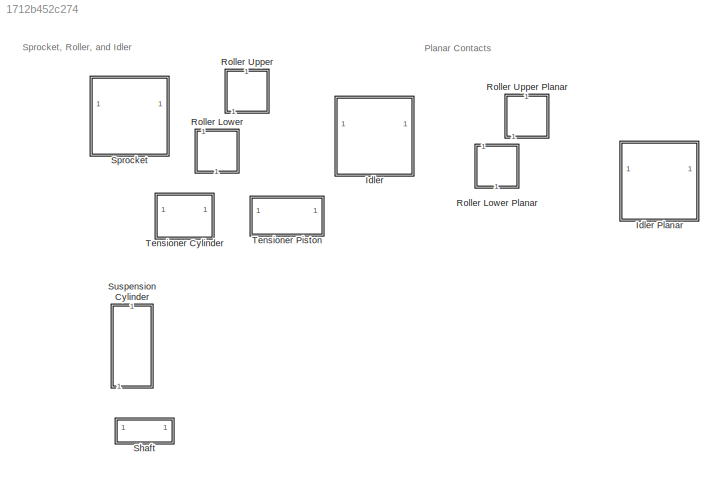
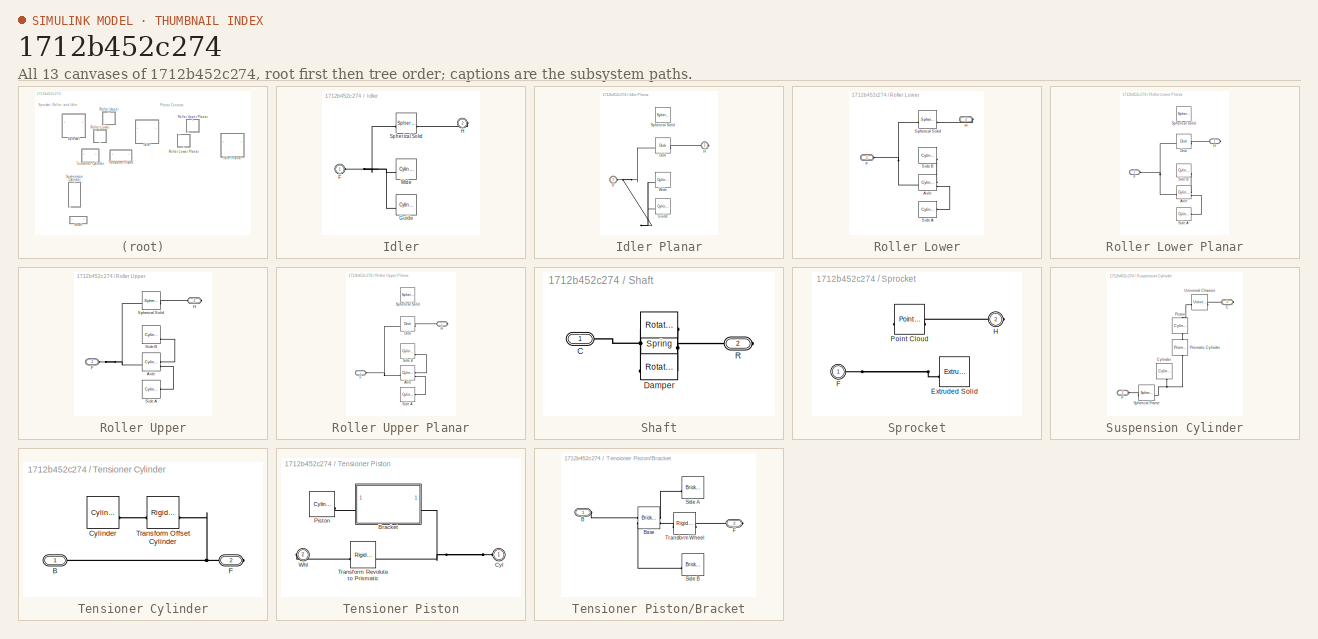
[diagram: thumbnail index - all 13 canvases of the model, root first then tree order]
MODEL slx_1712b452c274
KIND library
CONFIG SolverName = VariableStepAuto
BLOCK [SubSystem] Idler
BLOCK [SubSystem] Idler Planar
BLOCK [Reference] Idler Planar/Disk  REF=sm_lib/Curves and Surfaces/Disk
  SourceBlock = sm_lib/Curves and Surfaces/Disk
  SourceType = Disk
BLOCK [PMIOPort] Idler Planar/F
  Side = Left
BLOCK [Reference] Idler Planar/Guide  REF=sm_lib/Body Elements/Cylindrical Solid
  SourceBlock = sm_lib/Body Elements/Cylindrical Solid
  SourceType = Cylindrical Solid
BLOCK [PMIOPort] Idler Planar/H
  Port = 2
  Side = Right
BLOCK [Reference] Idler Planar/Spherical Solid  REF=sm_lib/Body Elements/Spherical Solid
  SourceBlock = sm_lib/Body Elements/Spherical Solid
  SourceType = Spherical Solid
BLOCK [Reference] Idler Planar/Wide  REF=sm_lib/Body Elements/Cylindrical Solid
  SourceBlock = sm_lib/Body Elements/Cylindrical Solid
  SourceType = Cylindrical Solid
BLOCK [PMIOPort] Idler/F
  Side = Left
BLOCK [Reference] Idler/Guide  REF=sm_lib/Body Elements/Cylindrical Solid
  SourceBlock = sm_lib/Body Elements/Cylindrical Solid
  SourceType = Cylindrical Solid
BLOCK [PMIOPort] Idler/H
  Port = 2
  Side = Right
BLOCK [Reference] Idler/Spherical Solid  REF=sm_lib/Body Elements/Spherical Solid
  SourceBlock = sm_lib/Body Elements/Spherical Solid
  SourceType = Spherical Solid
BLOCK [Reference] Idler/Wide  REF=sm_lib/Body Elements/Cylindrical Solid
  SourceBlock = sm_lib/Body Elements/Cylindrical Solid
  SourceType = Cylindrical Solid
BLOCK [SubSystem] Roller Lower
  NameLocation = right
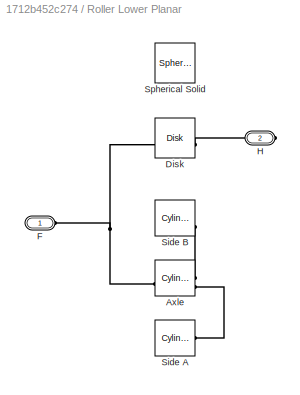
BLOCK [SubSystem] Roller Lower Planar
  NameLocation = right
BLOCK [Reference] Roller Lower Planar/Axle  REF=sm_lib/Body Elements/Cylindrical Solid
  SourceBlock = sm_lib/Body Elements/Cylindrical Solid
  SourceType = Cylindrical Solid
BLOCK [Reference] Roller Lower Planar/Disk  REF=sm_lib/Curves and Surfaces/Disk
  SourceBlock = sm_lib/Curves and Surfaces/Disk
  SourceType = Disk
BLOCK [PMIOPort] Roller Lower Planar/F
  Side = Left
BLOCK [PMIOPort] Roller Lower Planar/H
  Port = 2
  Side = Right
BLOCK [Reference] Roller Lower Planar/Side A  REF=sm_lib/Body Elements/Cylindrical Solid
  SourceBlock = sm_lib/Body Elements/Cylindrical Solid
  SourceType = Cylindrical Solid
BLOCK [Reference] Roller Lower Planar/Side B  REF=sm_lib/Body Elements/Cylindrical Solid
  SourceBlock = sm_lib/Body Elements/Cylindrical Solid
  SourceType = Cylindrical Solid
BLOCK [Reference] Roller Lower Planar/Spherical Solid  REF=sm_lib/Body Elements/Spherical Solid
  SourceBlock = sm_lib/Body Elements/Spherical Solid
  SourceType = Spherical Solid
BLOCK [Reference] Roller Lower/Axle  REF=sm_lib/Body Elements/Cylindrical Solid
  SourceBlock = sm_lib/Body Elements/Cylindrical Solid
  SourceType = Cylindrical Solid
BLOCK [PMIOPort] Roller Lower/F
  Side = Left
BLOCK [PMIOPort] Roller Lower/H
  Port = 2
  Side = Right
BLOCK [Reference] Roller Lower/Side A  REF=sm_lib/Body Elements/Cylindrical Solid
  SourceBlock = sm_lib/Body Elements/Cylindrical Solid
  SourceType = Cylindrical Solid
BLOCK [Reference] Roller Lower/Side B  REF=sm_lib/Body Elements/Cylindrical Solid
  SourceBlock = sm_lib/Body Elements/Cylindrical Solid
  SourceType = Cylindrical Solid
BLOCK [Reference] Roller Lower/Spherical Solid  REF=sm_lib/Body Elements/Spherical Solid
  SourceBlock = sm_lib/Body Elements/Spherical Solid
  SourceType = Spherical Solid
BLOCK [SubSystem] Roller Upper
  NameLocation = right
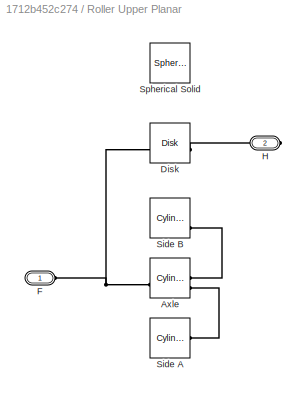
BLOCK [SubSystem] Roller Upper Planar
  NameLocation = right
BLOCK [Reference] Roller Upper Planar/Axle  REF=sm_lib/Body Elements/Cylindrical Solid
  SourceBlock = sm_lib/Body Elements/Cylindrical Solid
  SourceType = Cylindrical Solid
BLOCK [Reference] Roller Upper Planar/Disk  REF=sm_lib/Curves and Surfaces/Disk
  SourceBlock = sm_lib/Curves and Surfaces/Disk
  SourceType = Disk
BLOCK [PMIOPort] Roller Upper Planar/F
  Side = Left
BLOCK [PMIOPort] Roller Upper Planar/H
  Port = 2
  Side = Right
BLOCK [Reference] Roller Upper Planar/Side A  REF=sm_lib/Body Elements/Cylindrical Solid
  SourceBlock = sm_lib/Body Elements/Cylindrical Solid
  SourceType = Cylindrical Solid
BLOCK [Reference] Roller Upper Planar/Side B  REF=sm_lib/Body Elements/Cylindrical Solid
  SourceBlock = sm_lib/Body Elements/Cylindrical Solid
  SourceType = Cylindrical Solid
BLOCK [Reference] Roller Upper Planar/Spherical Solid  REF=sm_lib/Body Elements/Spherical Solid
  SourceBlock = sm_lib/Body Elements/Spherical Solid
  SourceType = Spherical Solid
BLOCK [Reference] Roller Upper/Axle  REF=sm_lib/Body Elements/Cylindrical Solid
  SourceBlock = sm_lib/Body Elements/Cylindrical Solid
  SourceType = Cylindrical Solid
BLOCK [PMIOPort] Roller Upper/F
  Side = Left
BLOCK [PMIOPort] Roller Upper/H
  Port = 2
  Side = Right
BLOCK [Reference] Roller Upper/Side A  REF=sm_lib/Body Elements/Cylindrical Solid
  SourceBlock = sm_lib/Body Elements/Cylindrical Solid
  SourceType = Cylindrical Solid
BLOCK [Reference] Roller Upper/Side B  REF=sm_lib/Body Elements/Cylindrical Solid
  SourceBlock = sm_lib/Body Elements/Cylindrical Solid
  SourceType = Cylindrical Solid
BLOCK [Reference] Roller Upper/Spherical Solid  REF=sm_lib/Body Elements/Spherical Solid
  SourceBlock = sm_lib/Body Elements/Spherical Solid
  SourceType = Spherical Solid
BLOCK [SubSystem] Shaft
BLOCK [PMIOPort] Shaft/C
  Side = Left
BLOCK [Reference] Shaft/Damper  REF=fl_lib/Mechanical/Rotational Elements/Rotational Damper
  SourceBlock = fl_lib/Mechanical/Rotational Elements/Rotational Damper
  SourceType = Rotational Damper
BLOCK [PMIOPort] Shaft/R
  Port = 2
  Side = Right
BLOCK [Reference] Shaft/Spring  REF=fl_lib/Mechanical/Rotational Elements/Rotational Spring
  NameLocation = top
  SourceBlock = fl_lib/Mechanical/Rotational Elements/Rotational Spring
  SourceType = Rotational Spring
BLOCK [SubSystem] Sprocket
BLOCK [Reference] Sprocket/Extruded Solid  REF=sm_lib/Body Elements/Extruded Solid
  SourceBlock = sm_lib/Body Elements/Extruded Solid
  SourceType = Extruded Solid
BLOCK [PMIOPort] Sprocket/F
  Side = Left
BLOCK [PMIOPort] Sprocket/H
  Port = 2
  Side = Right
BLOCK [Reference] Sprocket/Point Cloud  REF=sm_lib/Curves and Surfaces/Point Cloud
  SourceBlock = sm_lib/Curves and Surfaces/Point Cloud
  SourceType = Point Cloud
BLOCK [SubSystem] Suspension Cylinder
  NameLocation = right
BLOCK [PMIOPort] Suspension Cylinder/C
  Side = Right
BLOCK [Reference] Suspension Cylinder/Cylinder  REF=sm_lib/Body Elements/Cylindrical Solid
  NameLocation = left
  SourceBlock = sm_lib/Body Elements/Cylindrical Solid
  SourceType = Cylindrical Solid
BLOCK [PMIOPort] Suspension Cylinder/F
  Port = 2
  Side = Left
BLOCK [Reference] Suspension Cylinder/Piston  REF=sm_lib/Body Elements/Cylindrical Solid
  NameLocation = left
  SourceBlock = sm_lib/Body Elements/Cylindrical Solid
  SourceType = Cylindrical Solid
BLOCK [Reference] Suspension Cylinder/Prismatic Cylinder  REF=sm_lib/Joints/Prismatic
Joint
  NameLocation = left
  SourceBlock = sm_lib/Joints/Prismatic\nJoint
  SourceType = Prismatic\nJoint
BLOCK [Reference] Suspension Cylinder/Spherical Frame  REF=sm_lib/Joints/Spherical
Joint
  SourceBlock = sm_lib/Joints/Spherical\nJoint
  SourceType = Spherical\nJoint
BLOCK [Reference] Suspension Cylinder/Universal Chassis  REF=sm_lib/Joints/Universal
Joint
  SourceBlock = sm_lib/Joints/Universal\nJoint
  SourceType = Universal\nJoint
BLOCK [SubSystem] Tensioner Cylinder
BLOCK [PMIOPort] Tensioner Cylinder/B
  Side = Left
BLOCK [Reference] Tensioner Cylinder/Cylinder  REF=sm_lib/Body Elements/Cylindrical Solid
  SourceBlock = sm_lib/Body Elements/Cylindrical Solid
  SourceType = Cylindrical Solid
BLOCK [PMIOPort] Tensioner Cylinder/F
  Port = 2
  Side = Right
BLOCK [Reference] Tensioner Cylinder/Transform Offset Cylinder  REF=sm_lib/Frames and
Transforms/Rigid
Transform
  SourceBlock = sm_lib/Frames and\nTransforms/Rigid\nTransform
  SourceType = Rigid\nTransform
BLOCK [SubSystem] Tensioner Piston
BLOCK [SubSystem] Tensioner Piston/Bracket
BLOCK [PMIOPort] Tensioner Piston/Bracket/B
  Side = Left
BLOCK [Reference] Tensioner Piston/Bracket/Base  REF=sm_lib/Body Elements/Brick Solid
  SourceBlock = sm_lib/Body Elements/Brick Solid
  SourceType = Brick Solid
BLOCK [PMIOPort] Tensioner Piston/Bracket/F
  Port = 2
  Side = Right
BLOCK [Reference] Tensioner Piston/Bracket/Side A  REF=sm_lib/Body Elements/Brick Solid
  SourceBlock = sm_lib/Body Elements/Brick Solid
  SourceType = Brick Solid
BLOCK [Reference] Tensioner Piston/Bracket/Side B  REF=sm_lib/Body Elements/Brick Solid
  SourceBlock = sm_lib/Body Elements/Brick Solid
  SourceType = Brick Solid
BLOCK [Reference] Tensioner Piston/Bracket/Transform Wheel  REF=sm_lib/Frames and
Transforms/Rigid
Transform
  SourceBlock = sm_lib/Frames and\nTransforms/Rigid\nTransform
  SourceType = Rigid\nTransform
BLOCK [PMIOPort] Tensioner Piston/Cyl
  Side = Left
BLOCK [Reference] Tensioner Piston/Piston  REF=sm_lib/Body Elements/Cylindrical Solid
  SourceBlock = sm_lib/Body Elements/Cylindrical Solid
  SourceType = Cylindrical Solid
BLOCK [Reference] Tensioner Piston/Transform Revolute to Prismatic   REF=sm_lib/Frames and
Transforms/Rigid
Transform
  SourceBlock = sm_lib/Frames and\nTransforms/Rigid\nTransform
  SourceType = Rigid\nTransform
BLOCK [PMIOPort] Tensioner Piston/Whl
  Port = 2
  Side = Right
ANNOTATION (root): Planar Contacts
ANNOTATION (root): Sprocket, Roller, and Idler
PNET net1: Idler Planar/Disk:LConn1 -- Idler Planar/F:RConn1 -- Idler Planar/Guide:RConn1 -- Idler Planar/Wide:RConn1
PLINE Idler Planar/Disk:RConn1 -- Idler Planar/H:RConn1
PNET net2: Idler/F:RConn1 -- Idler/Guide:RConn1 -- Idler/Spherical Solid:RConn1 -- Idler/Wide:RConn1
PLINE Idler/H:RConn1 -- Idler/Spherical Solid:LConn1
PLINE Roller Lower Planar/Axle:LConn1 -- Roller Lower Planar/Side B:LConn2
PLINE Roller Lower Planar/Axle:LConn2 -- Roller Lower Planar/Side A:LConn1
PNET net3: Roller Lower Planar/Axle:RConn1 -- Roller Lower Planar/Disk:LConn1 -- Roller Lower Planar/F:RConn1
PLINE Roller Lower Planar/Disk:RConn1 -- Roller Lower Planar/H:RConn1
PLINE Roller Lower/Axle:LConn1 -- Roller Lower/Side B:LConn2
PLINE Roller Lower/Axle:LConn2 -- Roller Lower/Side A:LConn1
PNET net4: Roller Lower/Axle:RConn1 -- Roller Lower/F:RConn1 -- Roller Lower/Spherical Solid:RConn1
PLINE Roller Lower/H:RConn1 -- Roller Lower/Spherical Solid:LConn1
PLINE Roller Upper Planar/Axle:LConn1 -- Roller Upper Planar/Side B:LConn2
PLINE Roller Upper Planar/Axle:LConn2 -- Roller Upper Planar/Side A:LConn1
PNET net5: Roller Upper Planar/Axle:RConn1 -- Roller Upper Planar/Disk:LConn1 -- Roller Upper Planar/F:RConn1
PLINE Roller Upper Planar/Disk:RConn1 -- Roller Upper Planar/H:RConn1
PLINE Roller Upper/Axle:LConn1 -- Roller Upper/Side B:LConn2
PLINE Roller Upper/Axle:LConn2 -- Roller Upper/Side A:LConn1
PNET net6: Roller Upper/Axle:RConn1 -- Roller Upper/F:RConn1 -- Roller Upper/Spherical Solid:RConn1
PLINE Roller Upper/H:RConn1 -- Roller Upper/Spherical Solid:LConn1
PNET net7: Shaft/C:RConn1 -- Shaft/Damper:RConn1 -- Shaft/Spring:RConn1
PNET net8: Shaft/Damper:LConn1 -- Shaft/R:RConn1 -- Shaft/Spring:LConn1
PNET net9: Sprocket/Extruded Solid:RConn1 -- Sprocket/F:RConn1 -- Sprocket/Point Cloud:LConn1
PLINE Sprocket/H:RConn1 -- Sprocket/Point Cloud:RConn1
PLINE Suspension Cylinder/C:RConn1 -- Suspension Cylinder/Universal Chassis:LConn1
PNET net10: Suspension Cylinder/Cylinder:RConn1 -- Suspension Cylinder/Prismatic Cylinder:LConn1 -- Suspension Cylinder/Spherical Frame:RConn1
PLINE Suspension Cylinder/F:RConn1 -- Suspension Cylinder/Spherical Frame:LConn1
PLINE Suspension Cylinder/Piston:LConn1 -- Suspension Cylinder/Universal Chassis:RConn1
PLINE Suspension Cylinder/Piston:RConn1 -- Suspension Cylinder/Prismatic Cylinder:RConn1
PNET net11: Tensioner Cylinder/B:RConn1 -- Tensioner Cylinder/F:RConn1 -- Tensioner Cylinder/Transform Offset Cylinder:RConn1
PLINE Tensioner Cylinder/Cylinder:LConn1 -- Tensioner Cylinder/Transform Offset Cylinder:LConn1
PLINE Tensioner Piston/Bracket/B:RConn1 -- Tensioner Piston/Bracket/Base:LConn1
PLINE Tensioner Piston/Bracket/Base:LConn2 -- Tensioner Piston/Bracket/Side B:LConn1
PLINE Tensioner Piston/Bracket/Base:RConn1 -- Tensioner Piston/Bracket/Side A:LConn1
PLINE Tensioner Piston/Bracket/Base:RConn2 -- Tensioner Piston/Bracket/Transform Wheel:LConn1
PLINE Tensioner Piston/Bracket/F:RConn1 -- Tensioner Piston/Bracket/Transform Wheel:RConn1
PLINE Tensioner Piston/Bracket:LConn1 -- Tensioner Piston/Piston:LConn1
PNET net12: Tensioner Piston/Bracket:RConn1 -- Tensioner Piston/Cyl:RConn1 -- Tensioner Piston/Transform Revolute to Prismatic :LConn1
PLINE Tensioner Piston/Transform Revolute to Prismatic :RConn1 -- Tensioner Piston/Whl:RConn1
note: PNET lines group multi-terminal physical nets as a canonical sorted terminal list (undirected conserving connections); 2-terminal nets keep the pairwise PLINE form
